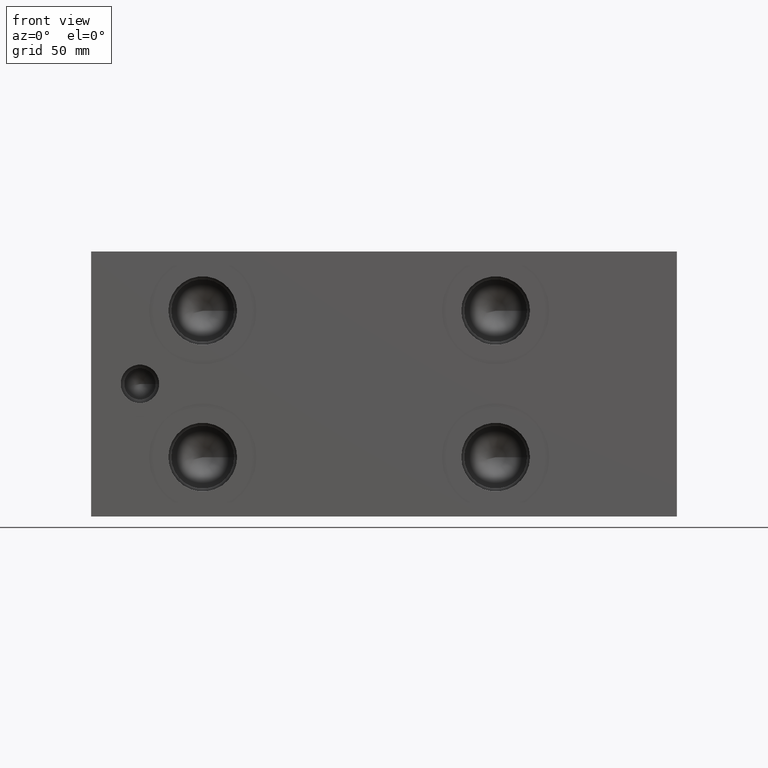
[diagram: clean part render]
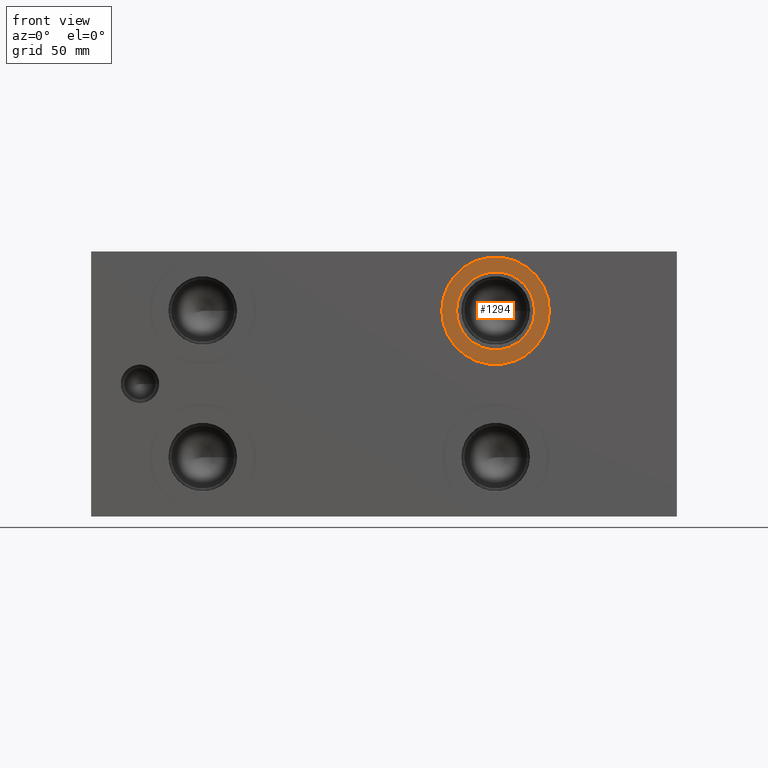
[diagram: same view with one face highlighted and labeled with its STEP entity id]
A machine part, front view. The second image highlights one B-rep face of the part: STEP entity #1294.
In plain terms, the highlighted planar face has unit normal (0, 1, 0).
Its self-contained STEP definition (entity closure, byte-faithful):
#1260=CARTESIAN_POINT('',(201.904600000000020,0.787400000000000,93.662499999999994));
#1261=VERTEX_POINT('',#1260);
#1262=CARTESIAN_POINT('',(184.150000000000030,0.787400000000000,93.662499999999994));
#1263=DIRECTION('',(0.0,-1.0,0.0));
#1264=DIRECTION('',(1.0,0.0,0.0));
#1265=AXIS2_PLACEMENT_3D('',#1262,#1263,#1264);
#1266=CIRCLE('',#1265,17.754599999999989);
#1267=EDGE_CURVE('',#1261,#1261,#1266,.T.);
#1275=CARTESIAN_POINT('',(205.270100000000040,0.787400000000000,93.662499999999994));
#1276=DIRECTION('',(0.0,1.0,0.0));
#1277=DIRECTION('',(0.0,0.0,1.0));
#1278=AXIS2_PLACEMENT_3D('',#1275,#1276,#1277);
#1279=PLANE('',#1278);
#1280=CARTESIAN_POINT('',(208.635600000000040,0.787400000000000,93.662499999999994));
#1281=VERTEX_POINT('',#1280);
#1282=CARTESIAN_POINT('',(184.150000000000030,0.787400000000000,93.662499999999994));
#1283=DIRECTION('',(0.0,-1.0,0.0));
#1284=DIRECTION('',(1.0,0.0,0.0));
#1285=AXIS2_PLACEMENT_3D('',#1282,#1283,#1284);
#1286=CIRCLE('',#1285,24.485600000000005);
#1287=EDGE_CURVE('',#1281,#1281,#1286,.T.);
#1288=ORIENTED_EDGE('',*,*,#1287,.T.);
#1289=EDGE_LOOP('',(#1288));
#1290=FACE_OUTER_BOUND('',#1289,.T.);
#1291=ORIENTED_EDGE('',*,*,#1267,.F.);
#1292=EDGE_LOOP('',(#1291));
#1293=FACE_BOUND('',#1292,.T.);
#1294=ADVANCED_FACE('',(#1290,#1293),#1279,.F.);